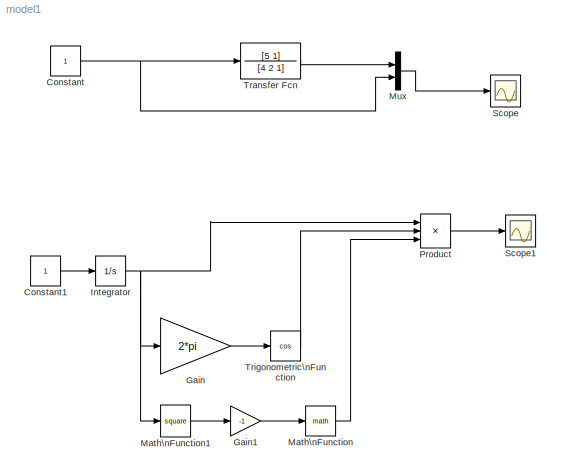
MODEL model1
KIND model
BLOCK [Constant] Constant
  OutDataType = fixdt(1, 16)
  OutScaling = 2^0
BLOCK [Constant] Constant1
  OutDataType = fixdt(1, 16)
  OutScaling = 2^0
BLOCK [Gain] Gain
  Gain = 2*pi
  OutDataType = fixdt(1, 16)
  OutDataTypeMode = Inherit via internal rule
  OutDataTypeStr = Inherit: Inherit via internal rule
  OutScaling = 2^0
  ParamDataTypeStr = Inherit: Inherit via internal rule
  ParameterDataType = fixdt(1, 16)
  ParameterDataTypeMode = Inherit via internal rule
  ParameterScaling = 2^0
  SaturateOnIntegerOverflow = off
BLOCK [Gain] Gain1
  Gain = -1
  OutDataType = fixdt(1, 16)
  OutDataTypeMode = Inherit via internal rule
  OutDataTypeStr = Inherit: Inherit via internal rule
  OutScaling = 2^0
  ParamDataTypeStr = Inherit: Inherit via internal rule
  ParameterDataType = fixdt(1, 16)
  ParameterDataTypeMode = Inherit via internal rule
  ParameterScaling = 2^0
  SaturateOnIntegerOverflow = off
BLOCK [Integrator] Integrator
  Ports = [1, 1]
BLOCK [Math] Math\nFunction
  OutDataType = fixdt(1, 16)
  OutScaling = 2^0
  Ports = [1, 1]
BLOCK [Math] Math\nFunction1
  Operator = square
  OutDataType = fixdt(1, 16)
  OutScaling = 2^0
  Ports = [1, 1]
BLOCK [Mux] Mux
  DisplayOption = bar
  Inputs = 2
  Ports = [2, 1]
BLOCK [Product] Product
  InputSameDT = off
  Inputs = 3
  OutDataType = fixdt(1, 16)
  OutDataTypeMode = Inherit via internal rule
  OutDataTypeStr = Inherit: Inherit via internal rule
  OutScaling = 2^0
  Ports = [3, 1]
  SaturateOnIntegerOverflow = off
BLOCK [Scope] Scope
  DataFormat = StructureWithTime
  Floating = off
  NumInputPorts = 1
  Ports = [1]
  SampleTime = 0
  ZoomMode = yonly
BLOCK [Scope] Scope1
  DataFormat = StructureWithTime
  Floating = off
  NumInputPorts = 1
  Ports = [1]
  SampleTime = 0
  SaveName = ScopeData1
  ZoomMode = xonly
BLOCK [TransferFcn] Transfer Fcn
  Denominator = [4 2 1]
  Numerator = [5 1]
BLOCK [Trigonometry] Trigonometric\nFunction
  Operator = cos
  Ports = [1, 1]
LINE Constant1:1 -> Integrator:1
NET Constant:1 -> Mux:2, Transfer Fcn:1
LINE Gain1:1 -> Math\nFunction:1
LINE Gain:1 -> Trigonometric\nFunction:1
NET Integrator:1 -> Gain:1, Math\nFunction1:1, Product:1
LINE Math\nFunction1:1 -> Gain1:1
LINE Math\nFunction:1 -> Product:3
LINE Mux:1 -> Scope:1
LINE Product:1 -> Scope1:1
LINE Transfer Fcn:1 -> Mux:1
LINE Trigonometric\nFunction:1 -> Product:2
note: NET lines group one-source signal fan-out (src -> all destinations, sorted); 1:1 wires keep LINE
